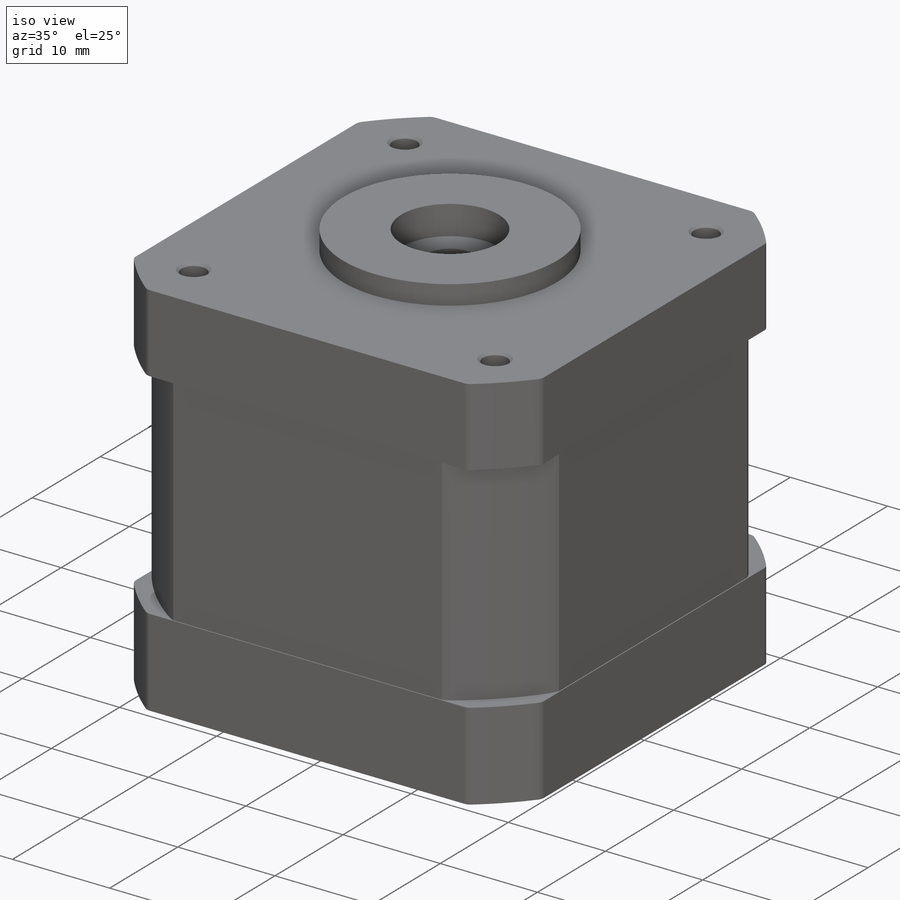
[diagram: iso view]
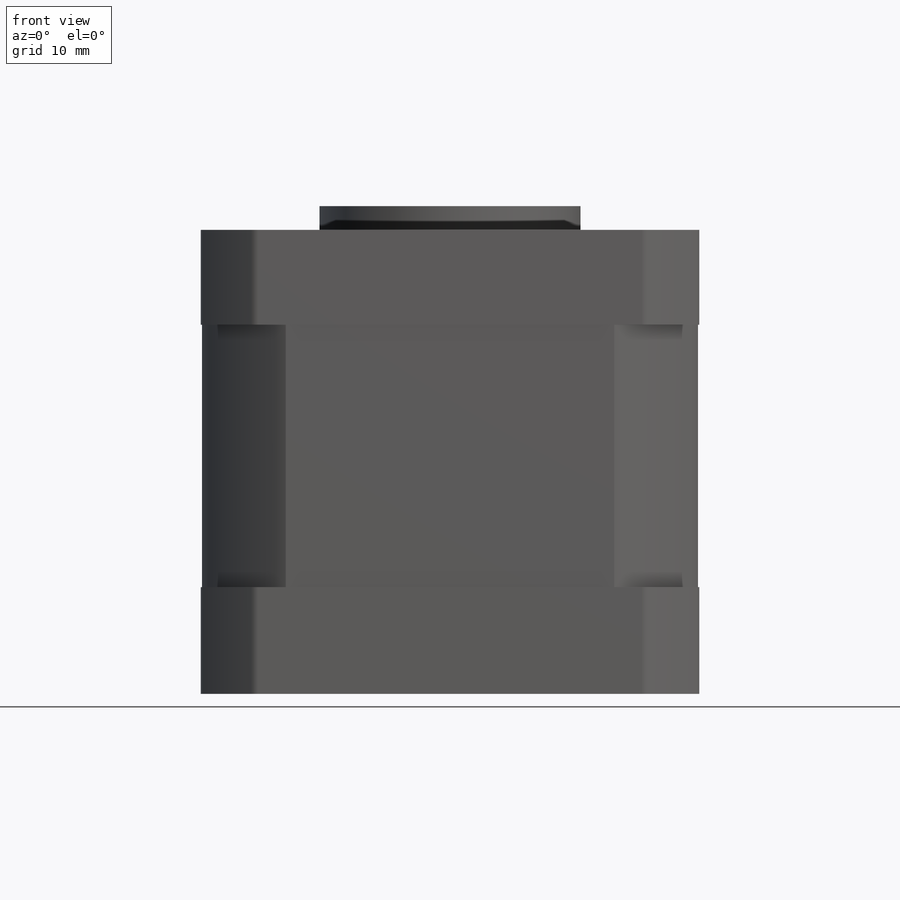
[diagram: front view]
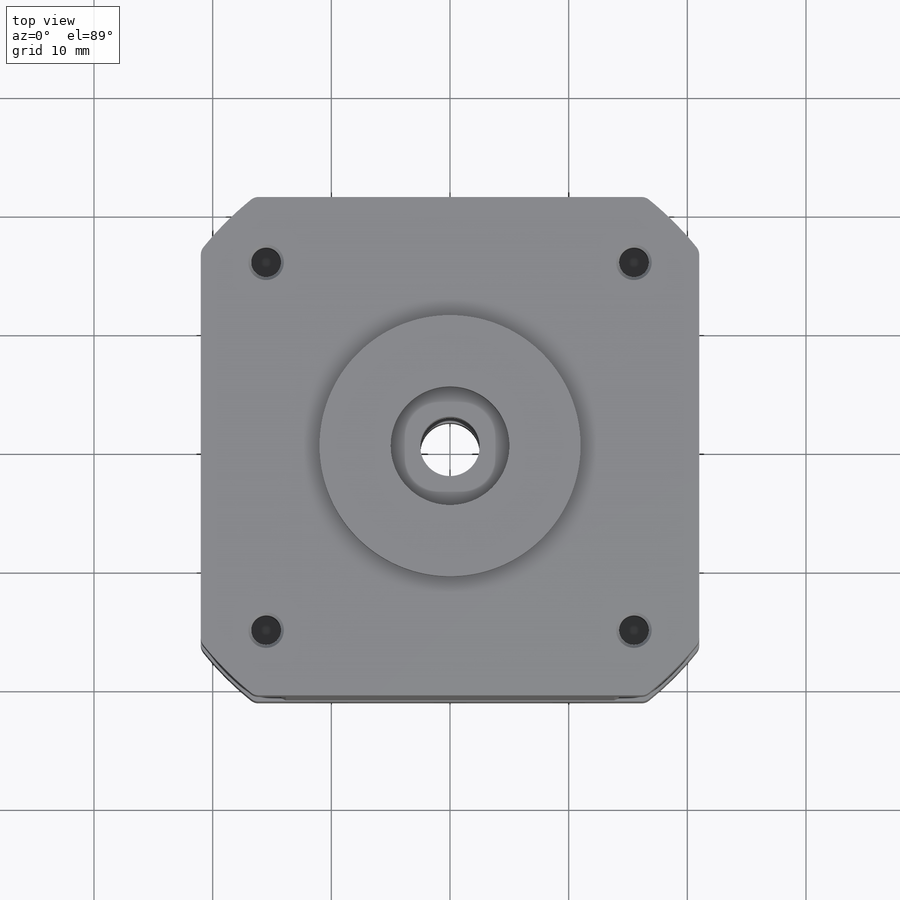
[diagram: top view]
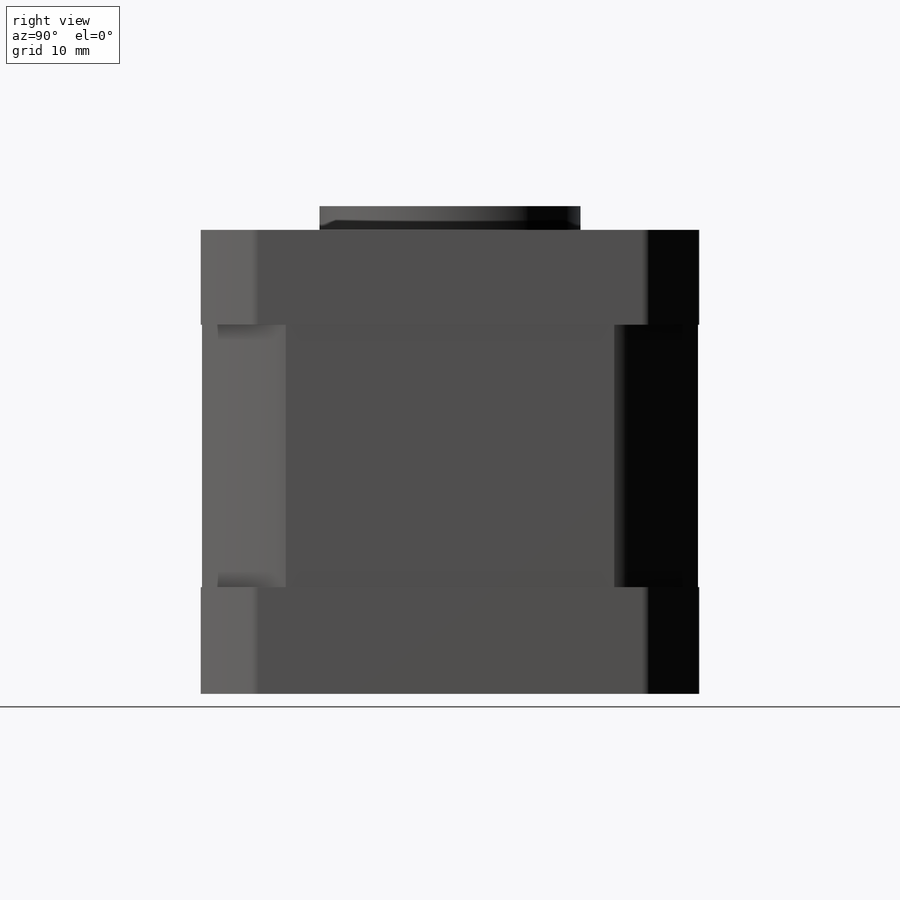
[diagram: right view]
SOLIDWORKS PART (.sldprt)
format: sldprt  version: not decoded by parser v0  size: 509,440 bytes
history: native  units: mm
features: sketch x4, cut_extrude x3, fillet x2, material x1, revolve x1, chamfer x1 (+13 scaffold rows collapsed)
feature tree (25):
  scaffold x13  (default folders/planes/origin — collapsed)
  material  "Material <not specified>"
  sketch  "Sketch1"  dims[D1=8.0mm D2=9.0mm D3=26.7mm D4=25.15mm D5=11.0mm D6=5.0mm D7=3.0mm D8=5.0mm D9=2.0mm D10=39.1mm]
  revolve  "Revolve1"  Angle=360deg
  sketch  "Sketch2"  dims[D1=42.0mm D2=55.0mm]
  cut_extrude  "Cut-Extrude1"  [1 undecoded]
  sketch  "Sketch3"  dims[D1=0.1mm]
  cut_extrude  "Cut-Extrude2"  [1 undecoded]
  fillet  "Fillet9"  Radius=5mm
  fillet  "Fillet10"  Radius=1mm
  sketch  "Sketch4"  dims[D2=2.5mm D1=31.0mm]
  cut_extrude  "Cut-Extrude3"  Depth=6mm
  chamfer  "Chamfer1"  Distance=0.25mm Angle=45deg
decode coverage: 9 of 11 modeling features carry decoded parameters
note: 2 parameter values undecoded
note: suppression state not decoded; provenance and decode notes live in map.json
